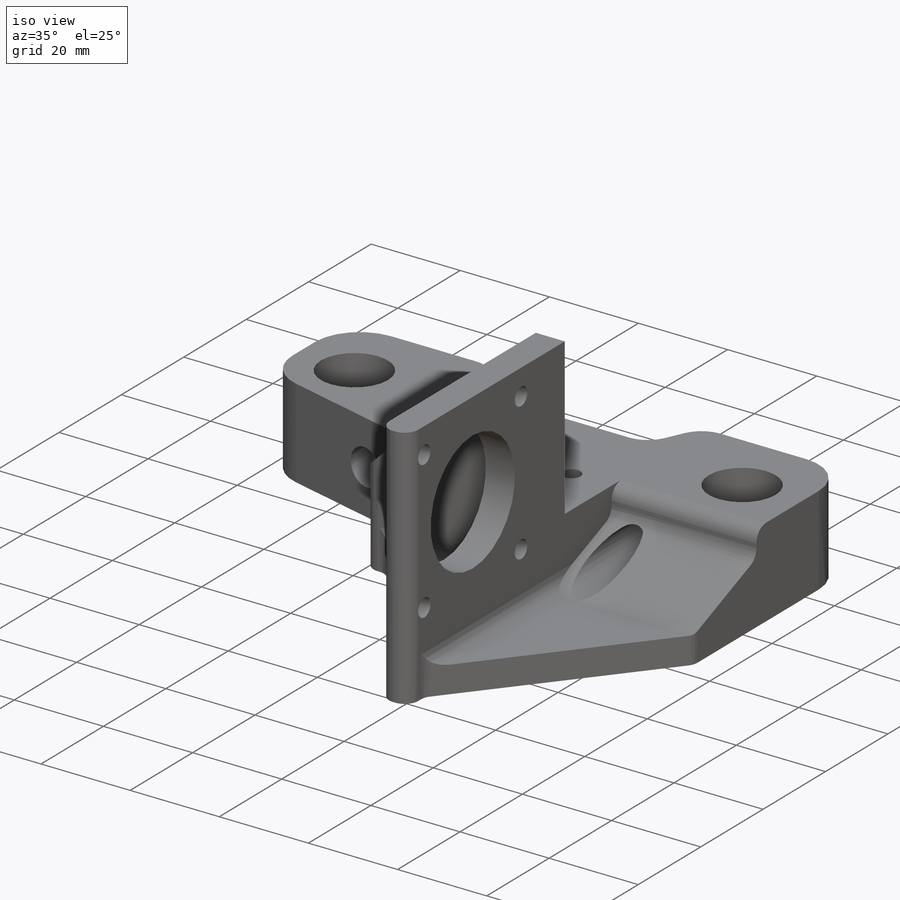
[diagram: iso view]
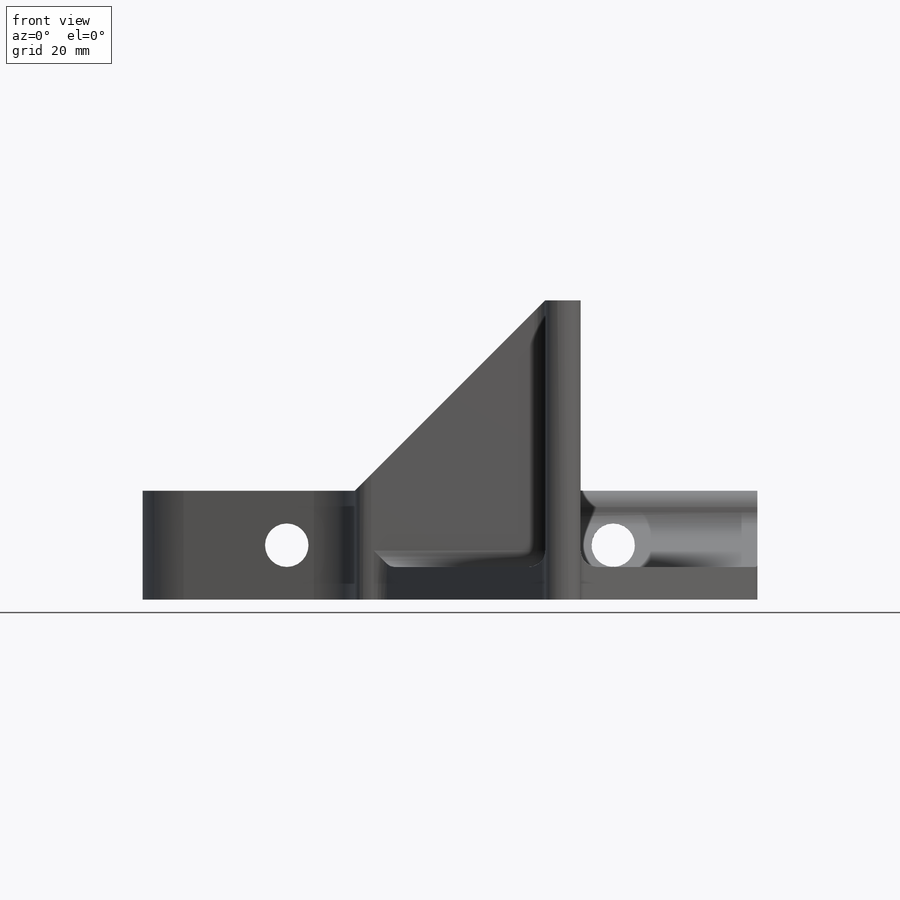
[diagram: front view]
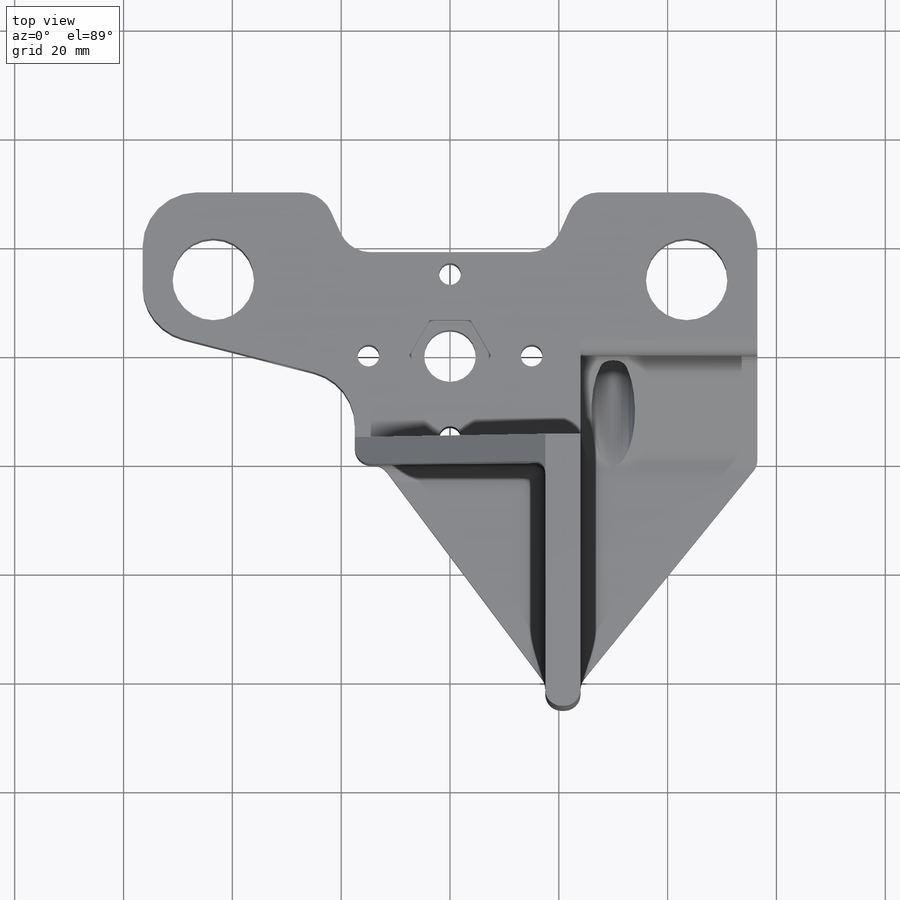
[diagram: top view]
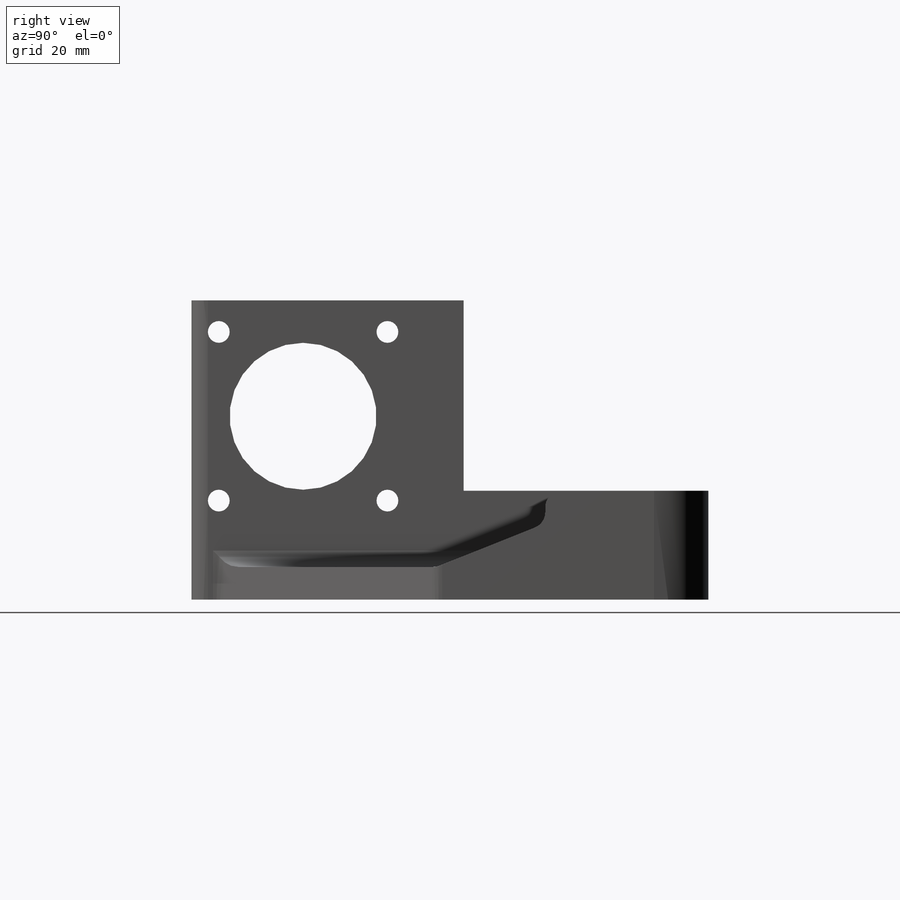
[diagram: right view]
SOLIDWORKS PART (.sldprt)
format: sldprt  version: not decoded by parser v0  size: 553,984 bytes
history: native  units: mm
features: sketch x11, cut_extrude x7, extrude x4, fillet x4, material x1 (+12 scaffold rows collapsed)
feature tree (39):
  scaffold x12  (default folders/planes/origin — collapsed)
  material  "ABS PC"
  sketch  "Sketch1"  dims[D1=113.0mm D2=50.0mm]
  extrude  "Boss-Extrude1"  Depth=20mm
  sketch  "Sketch2"  dims[c1.D2=~14.056043mm c1.D3=~14.056043mm c1.D5=15.0mm c1.D6=15.0mm c1.D1=15.0mm c2.D2=15.0mm c2.D4=~5.495424mm c2.D7=~5.495424mm c2.D8=9.5mm c2.D1=15.0mm c3.D2=9.5mm c3.D3=9.5mm c3.D9=9.5mm c3.D10=~5.217635mm c3.D11=4.0mm c3.D12=9.5mm c3.D13=4.0mm c3.D1=15.0mm c4.D2=45.0mm c4.D3=14.0mm c4.D4=45.0mm c4.D1=45.0mm c5.D2=45.0mm c5.D3=7.5mm c5.D4=43.5mm c5.D7=14.0mm c5.D1=43.5mm c6.D2=56.5mm c6.D3=30.0mm c6.D9=15.0mm c6.D10=15.0mm c6.D12=15.0mm c6.D13=15.0mm]
  cut_extrude  "Cut-Extrude1"  [1 undecoded]
  sketch  "Sketch3"  dims[c1.D3=~12.990381mm c1.D1=15.0mm c1.D2=40.0mm c2.D3=65.0mm]
  cut_extrude  "Cut-Extrude2"  Depth=5mm
  sketch  "Sketch5"  dims[c1.D1=8.0mm c1.D2=8.0mm c1.D3=8.0mm c1.D4=8.0mm c2.D2=8.0mm c2.D3=8.0mm c2.D4=8.0mm c3.D2=37.5mm c3.D3=37.5mm c3.D4=10.0mm c4.D2=60.0mm c4.D3=26.5mm c4.D4=10.0mm]
  cut_extrude  "Cut-Extrude4"  [1 undecoded]
  sketch  "Sketch6"  dims[D1=55.0mm D2=32.5mm D3=6.5mm]
  extrude  "Boss-Extrude2"  Depth=45mm
  sketch  "Sketch7"  dims[c1.D1=27.0mm c1.D3=7.0mm c1.D4=~6.574258mm c1.D5=~6.574258mm c1.D6=~6.574258mm c1.D7=7.0mm c1.D8=~6.574258mm c1.D9=7.0mm c1.D10=7.0mm c1.D11=7.0mm c2.D6=4.0mm c2.D7=7.0mm c2.D8=7.0mm c2.D2=23.0mm c2.D3=23.0mm c3.D2=50.0mm c3.D3=23.0mm c3.D4=15.5mm c3.D5=15.5mm c3.D6=15.5mm c3.D7=15.5mm c3.D8=15.5mm c3.D9=15.5mm c3.D10=15.5mm c3.D11=15.5mm c4.D7=15.5mm c4.D8=15.5mm c4.D2=21.5mm c4.D3=34.5mm c4.D9=21.5mm c5.D3=33.1mm c5.D2=22.5mm c6.D3=22.5mm c6.D2=33.7mm c7.D3=24.5mm]
  cut_extrude  "Cut-Extrude5"  Depth=10mm
  sketch  "Sketch10"  dims[c1.D1=~52.397312mm c2.D1=45.0deg]
  extrude  "Boss-Extrude4"  Depth=5mm
  fillet  "Fillet1"  Radius=2mm
  sketch  "Sketch11"  dims[c1.D1=40.0mm c1.D2=30.0mm c2.D1=40.0mm]
  extrude  "Boss-Extrude5"  Depth=6mm
  sketch  "Sketch12"  dims[D1=25.0mm D2=11.0mm D3=33.0mm D4=33.0mm D5=5.0mm D6=5.0mm D7=15.0mm]
  cut_extrude  "Cut-Extrude6"  [1 undecoded]
  fillet  "Fillet4"  Radius=10mm
  fillet  "Fillet5"  Radius=6mm
  sketch  "Sketch14"  dims[D1=8.0mm D2=20.0mm]
  cut_extrude  "Cut-Extrude8"  [1 undecoded]
  fillet  "Fillet6"  Radius=3mm
  sketch  "Sketch13"  dims[D1=5.5mm]
  cut_extrude  "Cut-Extrude7"  Depth=6mm
decode coverage: 22 of 26 modeling features carry decoded parameters
note: ~ marks probable driven/reference dimensions
note: 4 parameter values undecoded
summary: no parameter record found for 4 features
note: suppression state not decoded; provenance and decode notes live in map.json
